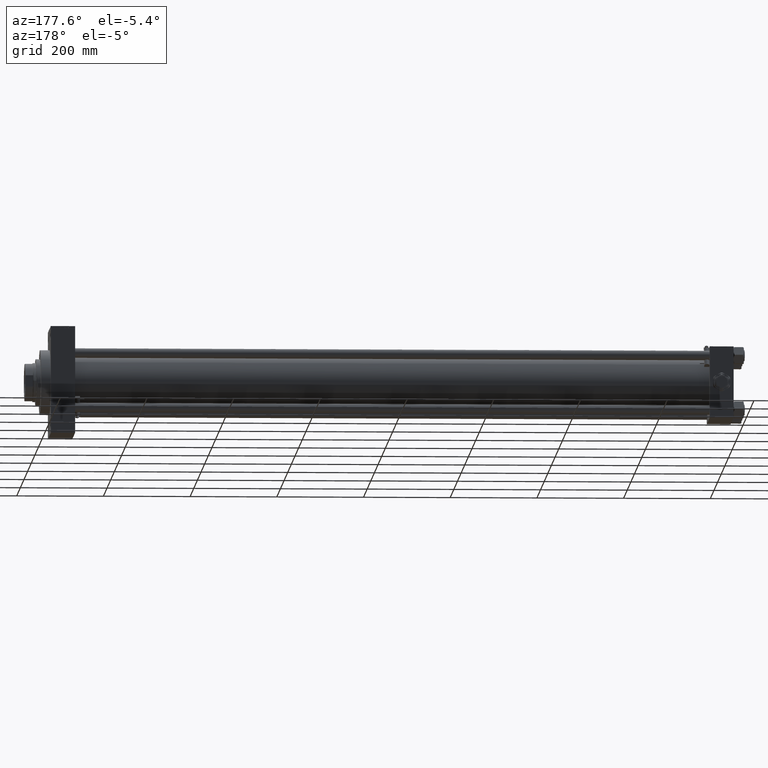
[diagram: clean part render]
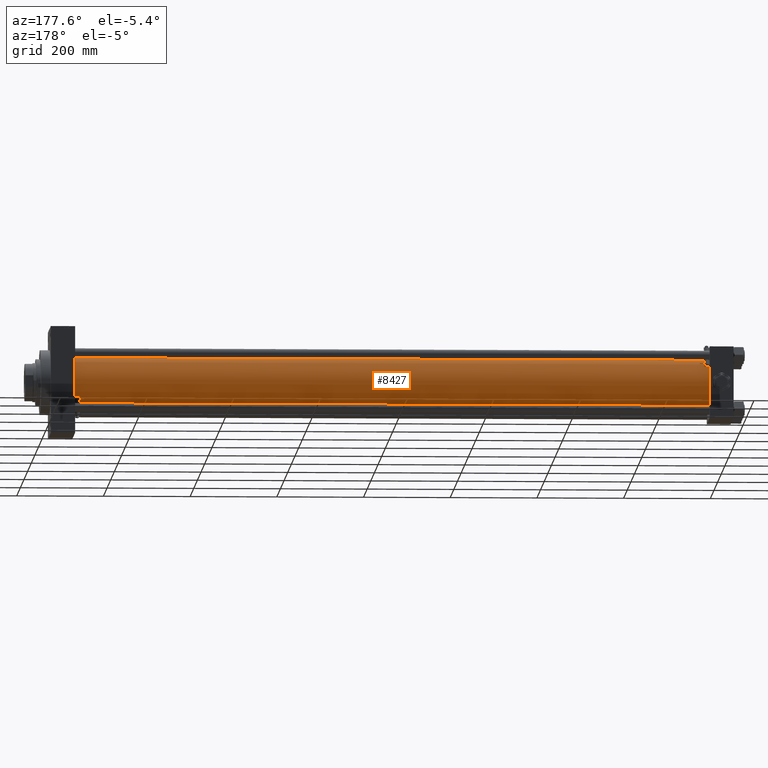
[diagram: same view with one face highlighted and labeled with its STEP entity id]
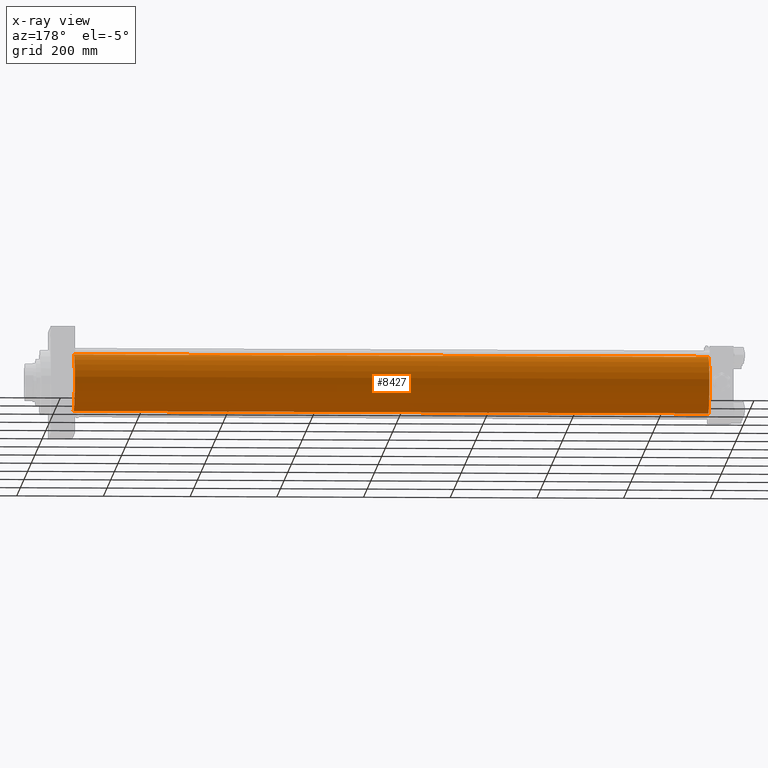
[diagram: x-ray of the same camera — body ghosted, the highlighted face saturated]
A machine part, auxiliary view. The second image highlights one B-rep face of the part: STEP entity #8427.
The next image is the same camera in x-ray: the body ghosted, the highlighted face saturated — about 0% of this face is hidden behind the body in this view.
In plain terms, the highlighted cylindrical surface (edge-blend (fillet) strip) has radius 65.5 mm, axis along (-1, -0, -0).
Its self-contained STEP definition (entity closure, byte-faithful):
#159 = VECTOR ( 'NONE', #22088, 1000.000000000000000 ) ;
#274 = ORIENTED_EDGE ( 'NONE', *, *, #7572, .T. ) ;
#1349 = CIRCLE ( 'NONE', #30137, 65.50000000000001421 ) ;
#2898 = ORIENTED_EDGE ( 'NONE', *, *, #39018, .F. ) ;
#3909 = DIRECTION ( 'NONE',  ( 1.000000000000000000, 0.000000000000000000, 0.000000000000000000 ) ) ;
#4760 = DIRECTION ( 'NONE',  ( -1.000000000000000000, -0.000000000000000000, -0.000000000000000000 ) ) ;
#5179 = DIRECTION ( 'NONE',  ( 0.000000000000000000, 0.000000000000000000, -1.000000000000000000 ) ) ;
#7572 = EDGE_CURVE ( 'NONE', #27888, #10205, #1349, .T. ) ;
#8427 = ADVANCED_FACE ( 'NONE', ( #31817 ), #32068, .T. ) ;
#9914 = LINE ( 'NONE', #41337, #16688 ) ;
#10205 = VERTEX_POINT ( 'NONE', #12107 ) ;
#10903 = ORIENTED_EDGE ( 'NONE', *, *, #17854, .T. ) ;
#11737 = CARTESIAN_POINT ( 'NONE',  ( 1519.000000000000000, 5.419351320449954973E-15, -65.50000000000001421 ) ) ;
#12107 = CARTESIAN_POINT ( 'NONE',  ( 54.99999999999993605, -2.602085213965210642E-15, 65.50000000000001421 ) ) ;
#13241 = CARTESIAN_POINT ( 'NONE',  ( 1519.000000000000000, -2.602085213965210642E-15, 0.000000000000000000 ) ) ;
#14616 = CARTESIAN_POINT ( 'NONE',  ( 1519.000000000000000, -2.602085213965210642E-15, 65.50000000000001421 ) ) ;
#16688 = VECTOR ( 'NONE', #36965, 1000.000000000000000 ) ;
#17819 = DIRECTION ( 'NONE',  ( 0.000000000000000000, 0.000000000000000000, 1.000000000000000000 ) ) ;
#17854 = EDGE_CURVE ( 'NONE', #39118, #27888, #9914, .T. ) ;
#20303 = AXIS2_PLACEMENT_3D ( 'NONE', #13241, #4760, #28949 ) ;
#20349 = EDGE_LOOP ( 'NONE', ( #47866, #10903, #274, #2898 ) ) ;
#22088 = DIRECTION ( 'NONE',  ( -1.000000000000000000, -0.000000000000000000, -0.000000000000000000 ) ) ;
#27888 = VERTEX_POINT ( 'NONE', #33825 ) ;
#28949 = DIRECTION ( 'NONE',  ( 0.000000000000000000, 0.000000000000000000, 1.000000000000000000 ) ) ;
#30137 = AXIS2_PLACEMENT_3D ( 'NONE', #32768, #40441, #17819 ) ;
#31393 = CARTESIAN_POINT ( 'NONE',  ( 1519.000000000000000, -2.602085213965210642E-15, 65.50000000000001421 ) ) ;
#31817 = FACE_OUTER_BOUND ( 'NONE', #20349, .T. ) ;
#32068 = CYLINDRICAL_SURFACE ( 'NONE', #20303, 65.50000000000001421 ) ;
#32768 = CARTESIAN_POINT ( 'NONE',  ( 54.99999999999993605, -2.602085213965210642E-15, 0.000000000000000000 ) ) ;
#33825 = CARTESIAN_POINT ( 'NONE',  ( 54.99999999999993605, 5.419351320449954973E-15, -65.50000000000001421 ) ) ;
#34973 = CIRCLE ( 'NONE', #49766, 65.50000000000001421 ) ;
#36965 = DIRECTION ( 'NONE',  ( -1.000000000000000000, -0.000000000000000000, -0.000000000000000000 ) ) ;
#39018 = EDGE_CURVE ( 'NONE', #41080, #10205, #49857, .T. ) ;
#39118 = VERTEX_POINT ( 'NONE', #11737 ) ;
#39167 = CARTESIAN_POINT ( 'NONE',  ( 1519.000000000000000, -2.602085213965210642E-15, 0.000000000000000000 ) ) ;
#40441 = DIRECTION ( 'NONE',  ( 1.000000000000000000, -0.000000000000000000, -0.000000000000000000 ) ) ;
#41080 = VERTEX_POINT ( 'NONE', #31393 ) ;
#41337 = CARTESIAN_POINT ( 'NONE',  ( 1519.000000000000000, 5.419351320449954973E-15, -65.50000000000001421 ) ) ;
#47866 = ORIENTED_EDGE ( 'NONE', *, *, #49698, .F. ) ;
#49698 = EDGE_CURVE ( 'NONE', #39118, #41080, #34973, .T. ) ;
#49766 = AXIS2_PLACEMENT_3D ( 'NONE', #39167, #3909, #5179 ) ;
#49857 = LINE ( 'NONE', #14616, #159 ) ;